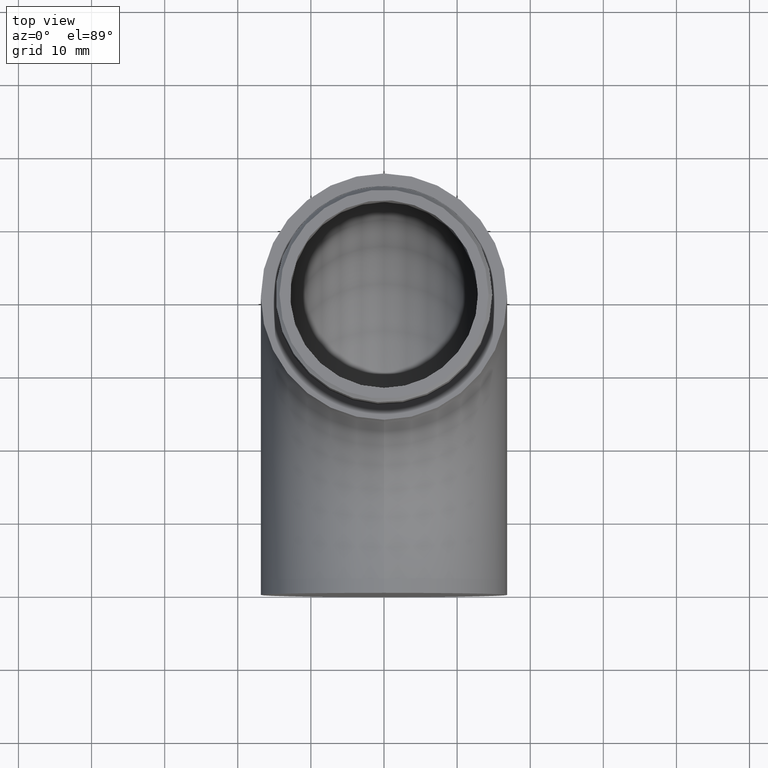
[diagram: clean part render]
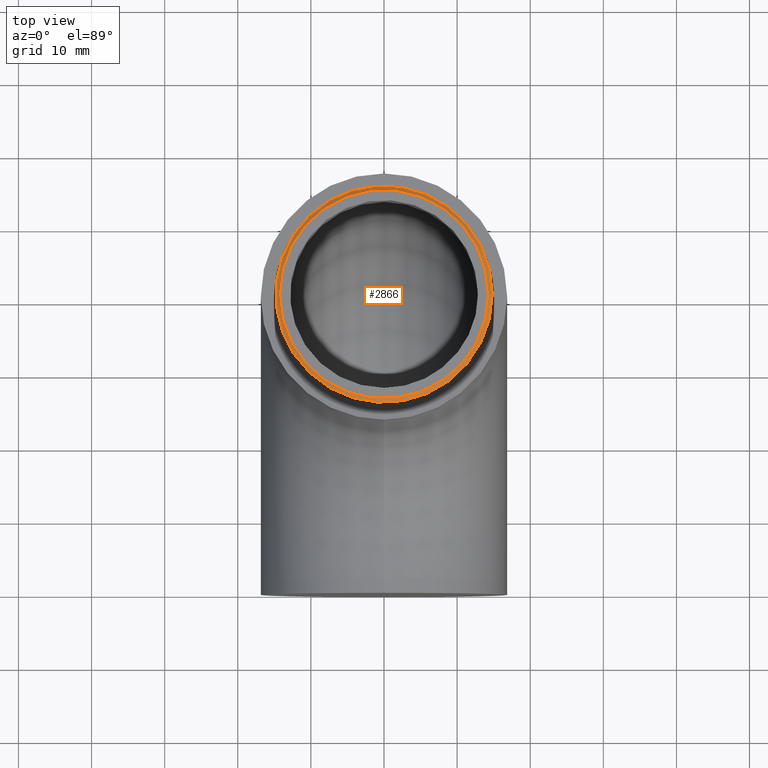
[diagram: same view with one face highlighted and labeled with its STEP entity id]
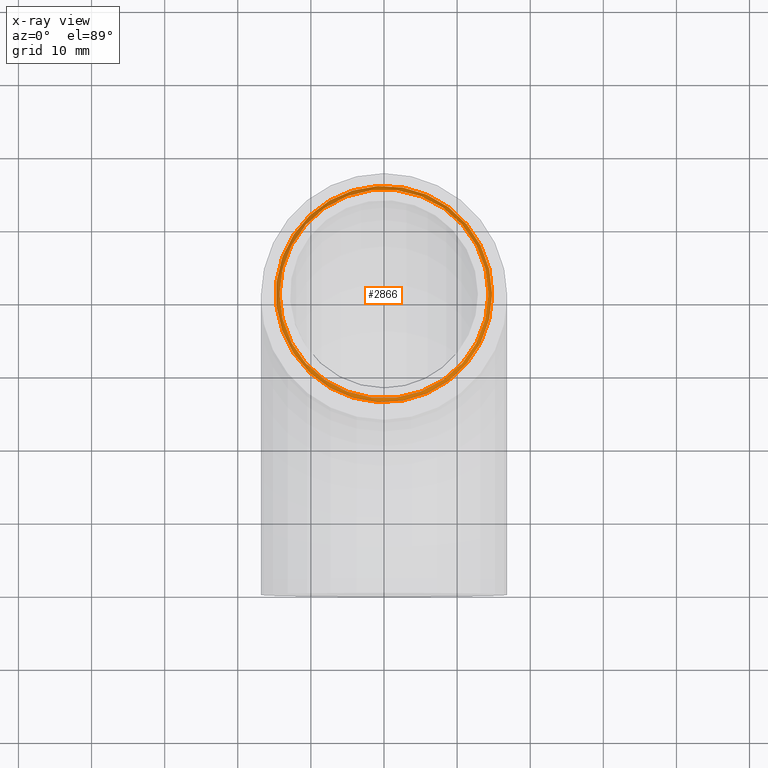
[diagram: x-ray of the same camera — body ghosted, the highlighted face saturated]
A machine part, top view. The second image highlights one B-rep face of the part: STEP entity #2866.
The next image is the same camera in x-ray: the body ghosted, the highlighted face saturated — about 0% of this face is hidden behind the body in this view.
In plain terms, the highlighted conical surface has half-angle 45 deg.
Its self-contained STEP definition (entity closure, byte-faithful):
#181 = CIRCLE ( 'NONE', #10508, 14.79999999999999900 ) ;
#1420 = AXIS2_PLACEMENT_3D ( 'NONE', #6880, #1986, #9070 ) ;
#1789 = FACE_BOUND ( 'NONE', #11998, .T. ) ;
#1853 = ORIENTED_EDGE ( 'NONE', *, *, #11485, .F. ) ;
#1986 = DIRECTION ( 'NONE',  ( 0.0000000000000000000, 0.0000000000000000000, 1.000000000000000000 ) ) ;
#2866 = ADVANCED_FACE ( 'NONE', ( #11460, #1789 ), #10821, .T. ) ;
#3180 = CARTESIAN_POINT ( 'NONE',  ( 14.29999999999996500, 40.14999999999999900, 58.14999999999999900 ) ) ;
#3848 = DIRECTION ( 'NONE',  ( 1.000000000000000000, 0.0000000000000000000, 0.0000000000000000000 ) ) ;
#4219 = VERTEX_POINT ( 'NONE', #3180 ) ;
#5649 = CIRCLE ( 'NONE', #1420, 14.29999999999996500 ) ;
#5776 = DIRECTION ( 'NONE',  ( 0.0000000000000000000, 0.0000000000000000000, -1.000000000000000000 ) ) ;
#6880 = CARTESIAN_POINT ( 'NONE',  ( 0.0000000000000000000, 40.14999999999999900, 58.14999999999999900 ) ) ;
#7235 = ORIENTED_EDGE ( 'NONE', *, *, #9026, .F. ) ;
#8612 = DIRECTION ( 'NONE',  ( -1.000000000000000000, 0.0000000000000000000, 0.0000000000000000000 ) ) ;
#8912 = CARTESIAN_POINT ( 'NONE',  ( 0.0000000000000000000, 40.14999999999999900, 58.14999999999999900 ) ) ;
#9026 = EDGE_CURVE ( 'NONE', #4219, #4219, #5649, .T. ) ;
#9070 = DIRECTION ( 'NONE',  ( 1.000000000000000000, 0.0000000000000000000, 0.0000000000000000000 ) ) ;
#9153 = AXIS2_PLACEMENT_3D ( 'NONE', #8912, #12931, #8612 ) ;
#10247 = CARTESIAN_POINT ( 'NONE',  ( 14.79999999999999900, 40.14999999999999900, 57.64999999999999100 ) ) ;
#10508 = AXIS2_PLACEMENT_3D ( 'NONE', #12991, #5776, #3848 ) ;
#10694 = VERTEX_POINT ( 'NONE', #10247 ) ;
#10821 = CONICAL_SURFACE ( 'NONE', #9153, 14.29999999999996500, 0.7853981633974742600 ) ;
#11460 = FACE_OUTER_BOUND ( 'NONE', #12061, .T. ) ;
#11485 = EDGE_CURVE ( 'NONE', #10694, #10694, #181, .T. ) ;
#11998 = EDGE_LOOP ( 'NONE', ( #7235 ) ) ;
#12061 = EDGE_LOOP ( 'NONE', ( #1853 ) ) ;
#12931 = DIRECTION ( 'NONE',  ( 0.0000000000000000000, 0.0000000000000000000, -1.000000000000000000 ) ) ;
#12991 = CARTESIAN_POINT ( 'NONE',  ( 0.0000000000000000000, 40.14999999999999900, 57.64999999999999100 ) ) ;